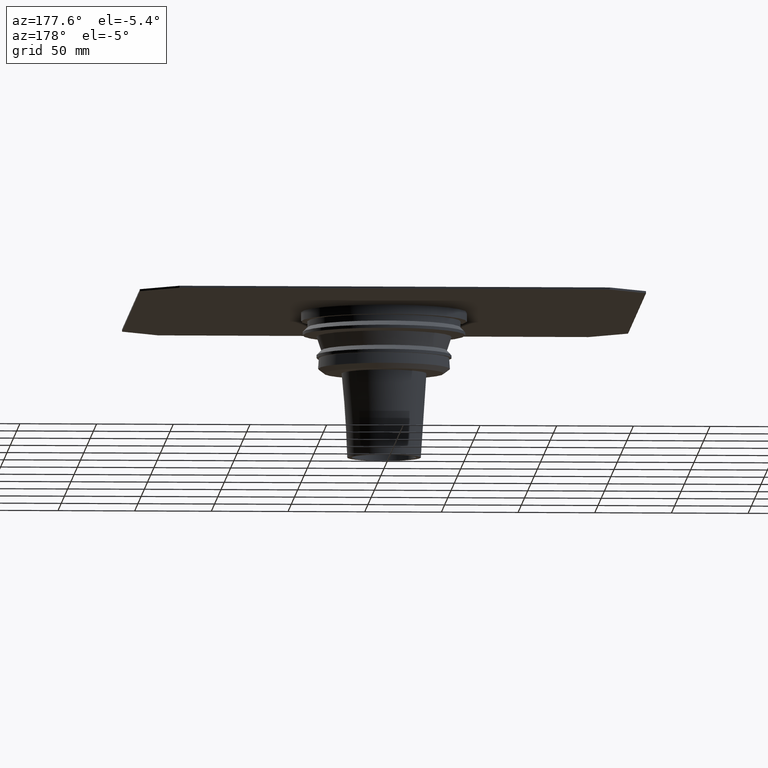
[diagram: clean part render]
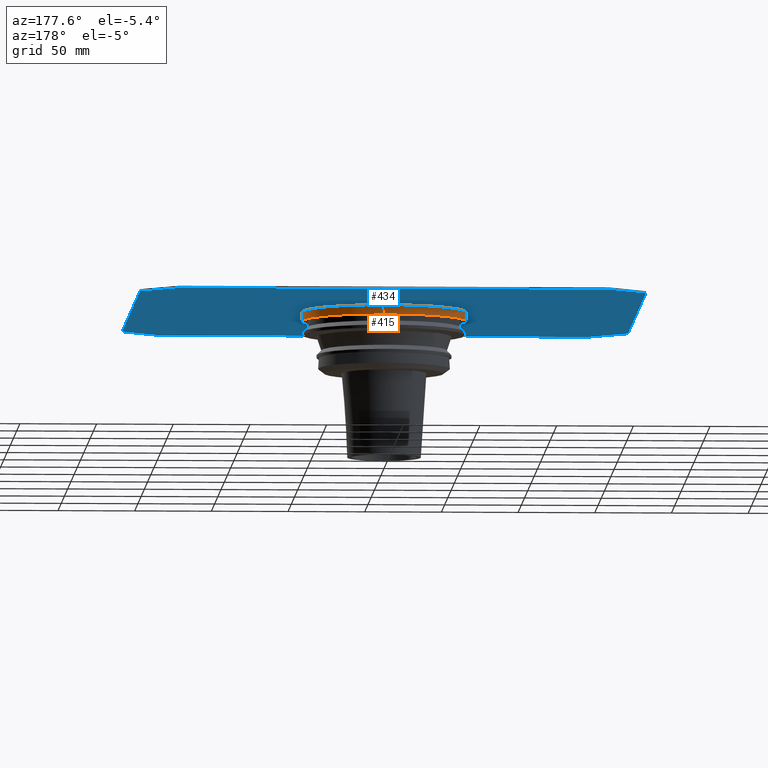
[diagram: same view with the hole feature highlighted: cylindrical wall and planar end face, labeled with their STEP entity ids]
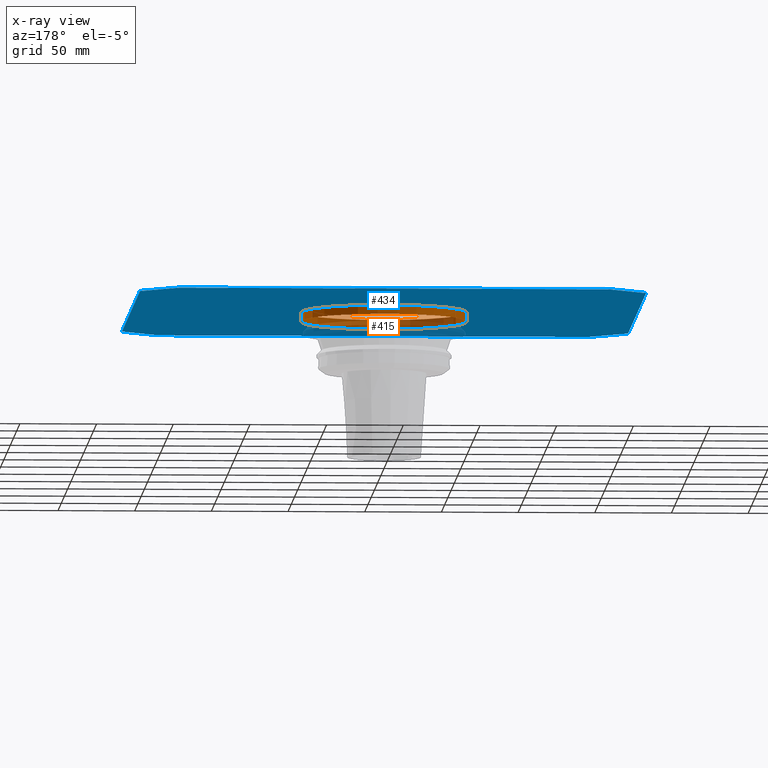
[diagram: x-ray of the same camera — body ghosted, the hole faces saturated]
A machine part, auxiliary view. The highlighted faces form one hole feature of diameter 108 mm: the cylindrical wall (entity #415, orange) and its adjacent planar end face (entity #434, blue) — they share a circular edge in the B-rep.
The next image is the same camera in x-ray (body ghosted, the hole faces saturated) — the bore reads through the body.
Wall:
#32=CIRCLE('',#461,54.);
#34=CIRCLE('',#464,54.);
#53=CYLINDRICAL_SURFACE('',#463,54.);
#93=ORIENTED_EDGE('',*,*,#177,.T.);
#94=ORIENTED_EDGE('',*,*,#175,.F.);
#175=EDGE_CURVE('',#213,#213,#32,.T.);
#177=EDGE_CURVE('',#215,#215,#34,.F.);
#213=VERTEX_POINT('',#690);
#215=VERTEX_POINT('',#695);
#293=EDGE_LOOP('',(#93));
#294=EDGE_LOOP('',(#94));
#347=FACE_BOUND('',#293,.T.);
#348=FACE_BOUND('',#294,.T.);
#415=ADVANCED_FACE('',(#347,#348),#53,.T.);
#461=AXIS2_PLACEMENT_3D('',#689,#552,#553);
#463=AXIS2_PLACEMENT_3D('',#693,#556,#557);
#464=AXIS2_PLACEMENT_3D('',#694,#558,#559);
#552=DIRECTION('',(0.,0.,-1.));
#553=DIRECTION('',(-1.,0.,0.));
#556=DIRECTION('',(0.,0.,-1.));
#557=DIRECTION('',(-1.,0.,0.));
#558=DIRECTION('',(0.,0.,1.));
#559=DIRECTION('',(1.,0.,0.));
#689=CARTESIAN_POINT('',(0.,0.,-6.));
#690=CARTESIAN_POINT('',(-54.,0.,-6.));
#693=CARTESIAN_POINT('',(0.,0.,-8.));
#694=CARTESIAN_POINT('',(0.,0.,0.));
#695=CARTESIAN_POINT('',(54.,0.,0.));
End face:
#34=CIRCLE('',#464,54.);
#131=ORIENTED_EDGE('',*,*,#177,.F.);
#132=ORIENTED_EDGE('',*,*,#151,.F.);
#133=ORIENTED_EDGE('',*,*,#174,.F.);
#134=ORIENTED_EDGE('',*,*,#169,.F.);
#135=ORIENTED_EDGE('',*,*,#166,.F.);
#136=ORIENTED_EDGE('',*,*,#163,.F.);
#137=ORIENTED_EDGE('',*,*,#160,.F.);
#138=ORIENTED_EDGE('',*,*,#157,.F.);
#139=ORIENTED_EDGE('',*,*,#154,.F.);
#151=EDGE_CURVE('',#197,#198,#235,.T.);
#154=EDGE_CURVE('',#198,#200,#238,.T.);
#157=EDGE_CURVE('',#200,#202,#241,.T.);
#160=EDGE_CURVE('',#202,#204,#244,.T.);
#163=EDGE_CURVE('',#204,#206,#247,.T.);
#166=EDGE_CURVE('',#206,#208,#250,.T.);
#169=EDGE_CURVE('',#208,#210,#253,.T.);
#174=EDGE_CURVE('',#210,#197,#256,.T.);
#177=EDGE_CURVE('',#215,#215,#34,.F.);
#197=VERTEX_POINT('',#640);
#198=VERTEX_POINT('',#642);
#200=VERTEX_POINT('',#648);
#202=VERTEX_POINT('',#654);
#204=VERTEX_POINT('',#660);
#206=VERTEX_POINT('',#666);
#208=VERTEX_POINT('',#672);
#210=VERTEX_POINT('',#678);
#215=VERTEX_POINT('',#695);
#235=LINE('',#641,#259);
#238=LINE('',#647,#262);
#241=LINE('',#653,#265);
#244=LINE('',#659,#268);
#247=LINE('',#665,#271);
#250=LINE('',#671,#274);
#253=LINE('',#677,#277);
#256=LINE('',#687,#280);
#259=VECTOR('',#508,1000.);
#262=VECTOR('',#513,1000.);
#265=VECTOR('',#518,1000.);
#268=VECTOR('',#523,1000.);
#271=VECTOR('',#528,1000.);
#274=VECTOR('',#533,1000.);
#277=VECTOR('',#538,1000.);
#280=VECTOR('',#549,1000.);
#331=EDGE_LOOP('',(#131));
#332=EDGE_LOOP('',(#132,#133,#134,#135,#136,#137,#138,#139));
#385=FACE_BOUND('',#331,.T.);
#386=FACE_BOUND('',#332,.T.);
#403=PLANE('',#500);
#434=ADVANCED_FACE('',(#385,#386),#403,.F.);
#464=AXIS2_PLACEMENT_3D('',#694,#558,#559);
#500=AXIS2_PLACEMENT_3D('',#748,#630,#631);
#508=DIRECTION('',(0.,-1.,0.));
#513=DIRECTION('',(0.707106781186547,-0.707106781186547,0.));
#518=DIRECTION('',(1.,0.,0.));
#523=DIRECTION('',(0.707106781186547,0.707106781186547,0.));
#528=DIRECTION('',(0.,1.,0.));
#533=DIRECTION('',(-0.707106781186547,0.707106781186547,0.));
#538=DIRECTION('',(-1.,0.,0.));
#549=DIRECTION('',(-0.707106781186547,-0.707106781186547,0.));
#558=DIRECTION('',(0.,0.,1.));
#559=DIRECTION('',(1.,0.,0.));
#630=DIRECTION('',(0.,0.,1.));
#631=DIRECTION('',(1.,0.,0.));
#640=CARTESIAN_POINT('',(-165.,140.251262658471,0.));
#641=CARTESIAN_POINT('',(-165.,140.251262658471,0.));
#642=CARTESIAN_POINT('',(-165.,-140.251262658471,0.));
#647=CARTESIAN_POINT('',(-165.,-140.251262658471,0.));
#648=CARTESIAN_POINT('',(-140.251262658471,-165.,0.));
#653=CARTESIAN_POINT('',(-140.251262658471,-165.,0.));
#654=CARTESIAN_POINT('',(140.251262658471,-165.,0.));
#659=CARTESIAN_POINT('',(140.251262658471,-165.,0.));
#660=CARTESIAN_POINT('',(165.,-140.251262658471,0.));
#665=CARTESIAN_POINT('',(165.,-140.251262658471,0.));
#666=CARTESIAN_POINT('',(165.,140.251262658471,0.));
#671=CARTESIAN_POINT('',(165.,140.251262658471,0.));
#672=CARTESIAN_POINT('',(140.251262658471,165.,0.));
#677=CARTESIAN_POINT('',(140.251262658471,165.,0.));
#678=CARTESIAN_POINT('',(-140.251262658471,165.,0.));
#687=CARTESIAN_POINT('',(-140.251262658471,165.,0.));
#694=CARTESIAN_POINT('',(0.,0.,0.));
#695=CARTESIAN_POINT('',(54.,0.,0.));
#748=CARTESIAN_POINT('',(0.,0.,0.));